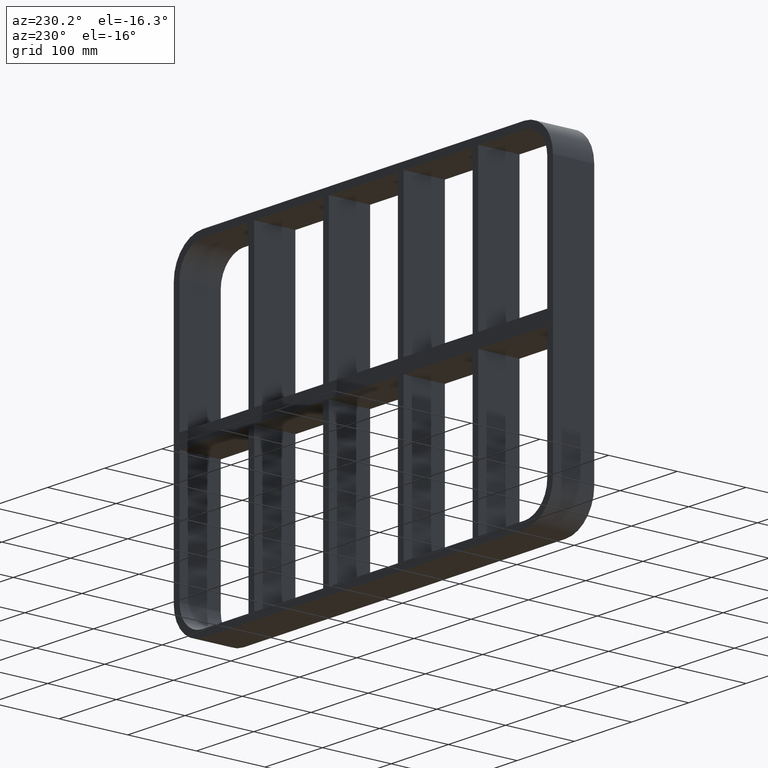
[diagram: clean part render]
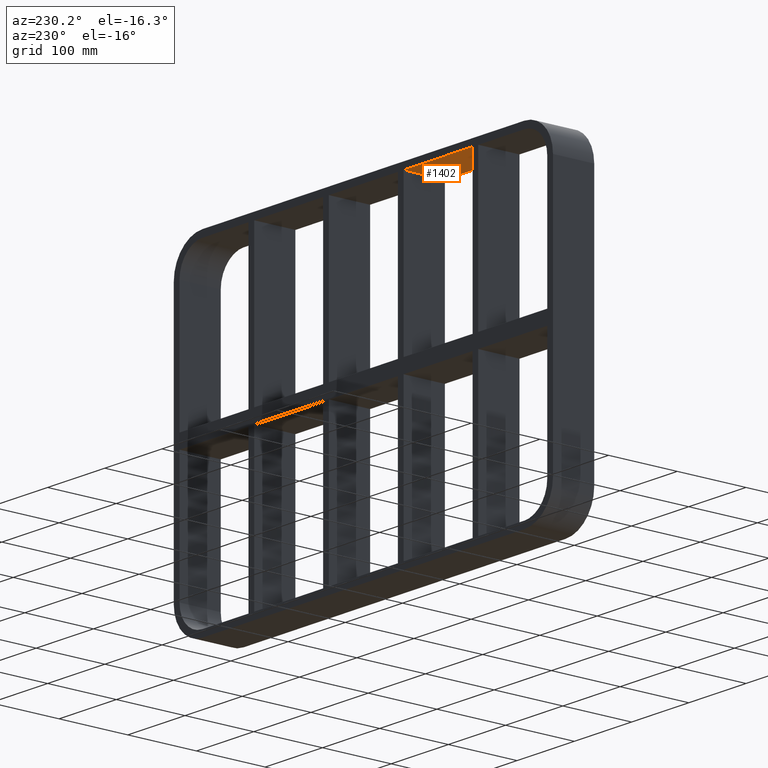
[diagram: same view with one face highlighted and labeled with its STEP entity id]
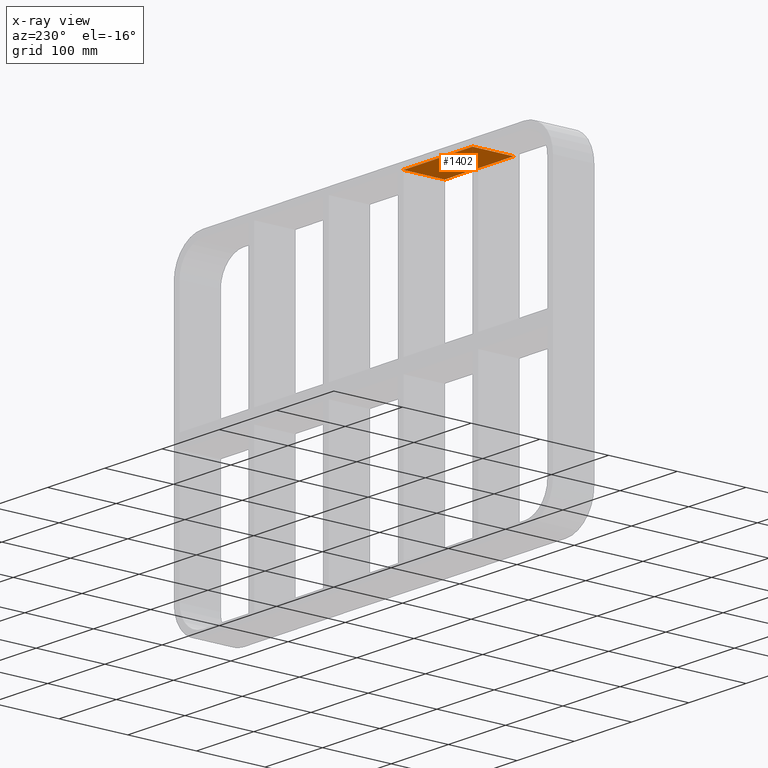
[diagram: x-ray of the same camera — body ghosted, the highlighted face saturated]
A machine part, auxiliary view. The second image highlights one B-rep face of the part: STEP entity #1402.
The next image is the same camera in x-ray: the body ghosted, the highlighted face saturated — about 1% of this face is hidden behind the body in this view.
In plain terms, the highlighted planar face has unit normal (0, 0, 1).
Its self-contained STEP definition (entity closure, byte-faithful):
#403=CARTESIAN_POINT('',(-70.250000000001478,-3.0,228.0));
#404=VERTEX_POINT('',#403);
#411=CARTESIAN_POINT('',(-70.250000000001478,57.0,228.0));
#412=VERTEX_POINT('',#411);
#413=CARTESIAN_POINT('',(-70.250000000001492,57.000000000000007,228.0));
#414=DIRECTION('',(0.0,-1.0,0.0));
#415=VECTOR('',#414,60.000000000000007);
#416=LINE('',#413,#415);
#417=EDGE_CURVE('',#412,#404,#416,.T.);
#809=CARTESIAN_POINT('',(-190.75000000000728,-3.0,228.0));
#810=VERTEX_POINT('',#809);
#817=CARTESIAN_POINT('',(-190.75000000000728,-3.0,228.0));
#818=DIRECTION('',(1.0,0.0,0.0));
#819=VECTOR('',#818,120.5000000000058);
#820=LINE('',#817,#819);
#821=EDGE_CURVE('',#810,#404,#820,.T.);
#1315=CARTESIAN_POINT('',(-190.75000000000728,57.0,228.0));
#1316=VERTEX_POINT('',#1315);
#1317=CARTESIAN_POINT('',(-70.250000000001478,57.0,228.0));
#1318=DIRECTION('',(-1.0,0.0,0.0));
#1319=VECTOR('',#1318,120.5000000000058);
#1320=LINE('',#1317,#1319);
#1321=EDGE_CURVE('',#412,#1316,#1320,.T.);
#1386=CARTESIAN_POINT('',(-321.25,0.0,228.0));
#1387=DIRECTION('',(0.0,0.0,1.0));
#1388=DIRECTION('',(1.0,0.0,0.0));
#1389=AXIS2_PLACEMENT_3D('',#1386,#1387,#1388);
#1390=PLANE('',#1389);
#1391=ORIENTED_EDGE('',*,*,#417,.T.);
#1392=ORIENTED_EDGE('',*,*,#821,.F.);
#1393=CARTESIAN_POINT('',(-190.75000000000728,-3.0,228.0));
#1394=DIRECTION('',(0.0,1.0,0.0));
#1395=VECTOR('',#1394,60.000000000000007);
#1396=LINE('',#1393,#1395);
#1397=EDGE_CURVE('',#810,#1316,#1396,.T.);
#1398=ORIENTED_EDGE('',*,*,#1397,.T.);
#1399=ORIENTED_EDGE('',*,*,#1321,.F.);
#1400=EDGE_LOOP('',(#1391,#1392,#1398,#1399));
#1401=FACE_OUTER_BOUND('',#1400,.T.);
#1402=ADVANCED_FACE('',(#1401),#1390,.F.);